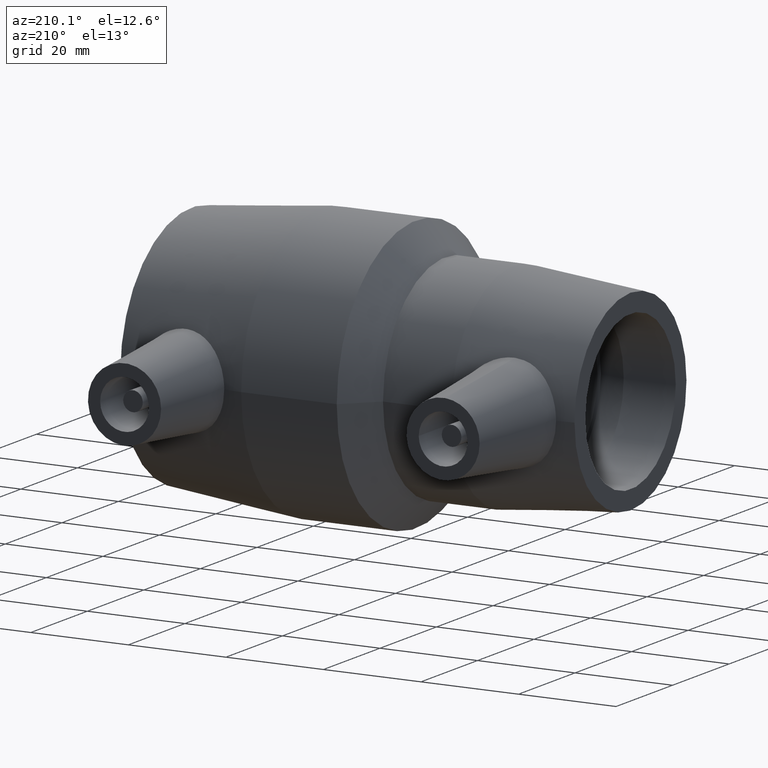
[diagram: clean part render]
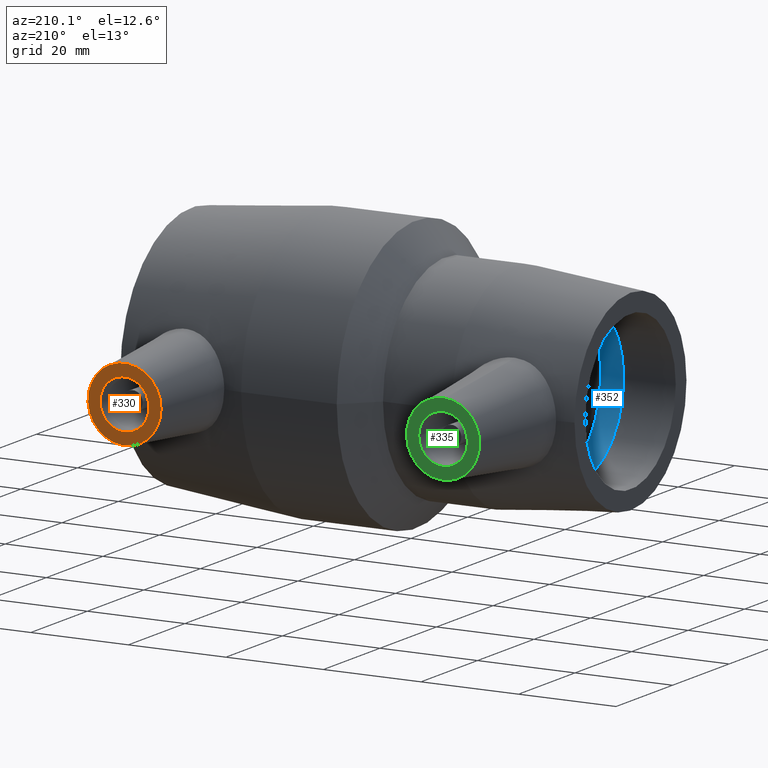
[diagram: same view with three faces highlighted in distinct colors, each labeled with its STEP entity id]
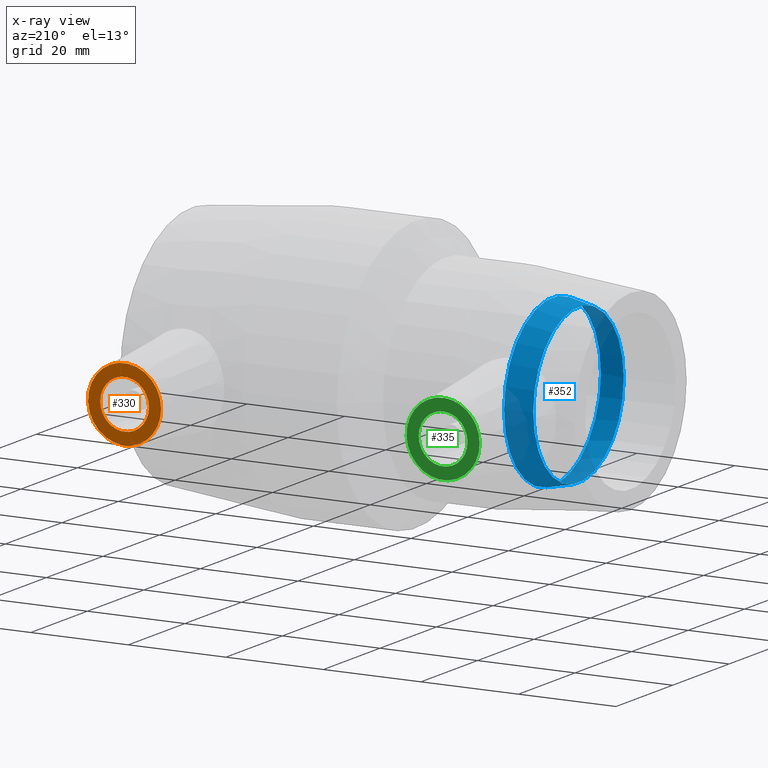
[diagram: x-ray of the same camera — body ghosted, the three highlighted faces saturated]
A machine part, auxiliary view with three faces highlighted in distinct colors.
The next image is the same camera in x-ray (body ghosted, the three faces saturated) — at least one of them is partly hidden behind the body in this view.
Their STEP definitions:

[orange] entity #330 — the highlighted planar face has unit normal (0, 1, 0).
#28=FACE_BOUND('',#107,.T.);
#72=FACE_OUTER_BOUND('',#106,.T.);
#106=EDGE_LOOP('',(#259));
#107=EDGE_LOOP('',(#260));
#164=CIRCLE('',#366,5.);
#165=CIRCLE('',#369,7.5);
#193=VERTEX_POINT('',#553);
#194=VERTEX_POINT('',#557);
#224=EDGE_CURVE('',#193,#193,#164,.T.);
#225=EDGE_CURVE('',#194,#194,#165,.T.);
#259=ORIENTED_EDGE('',*,*,#225,.F.);
#260=ORIENTED_EDGE('',*,*,#224,.T.);
#316=PLANE('',#368);
#330=ADVANCED_FACE('',(#72,#28),#316,.T.);
#366=AXIS2_PLACEMENT_3D('',#554,#436,#437);
#368=AXIS2_PLACEMENT_3D('',#556,#440,#441);
#369=AXIS2_PLACEMENT_3D('',#558,#442,#443);
#436=DIRECTION('center_axis',(0.,-1.,0.));
#437=DIRECTION('ref_axis',(1.,0.,0.));
#440=DIRECTION('center_axis',(0.,1.,0.));
#441=DIRECTION('ref_axis',(0.,0.,1.));
#442=DIRECTION('center_axis',(0.,-1.,0.));
#443=DIRECTION('ref_axis',(1.,0.,0.));
#553=CARTESIAN_POINT('',(26.5,47.,6.12323399573677E-16));
#554=CARTESIAN_POINT('Origin',(31.5,47.,0.));
#556=CARTESIAN_POINT('Origin',(31.5,47.,1.2335811384724E-16));
#557=CARTESIAN_POINT('',(24.,47.,9.18485099360515E-16));
#558=CARTESIAN_POINT('Origin',(31.5,47.,0.));

[blue] entity #352 — the highlighted conical surface has half-angle 12 deg.
#23=CONICAL_SURFACE('',#411,16.5668174977867,12.);
#51=FACE_BOUND('',#152,.T.);
#94=FACE_OUTER_BOUND('',#151,.T.);
#151=EDGE_LOOP('',(#304));
#152=EDGE_LOOP('',(#305));
#185=CIRCLE('',#410,17.1336349955734);
#186=CIRCLE('',#412,16.);
#216=VERTEX_POINT('',#688);
#217=VERTEX_POINT('',#691);
#247=EDGE_CURVE('',#216,#216,#185,.T.);
#248=EDGE_CURVE('',#217,#217,#186,.T.);
#304=ORIENTED_EDGE('',*,*,#248,.F.);
#305=ORIENTED_EDGE('',*,*,#247,.T.);
#352=ADVANCED_FACE('',(#94,#51),#23,.F.);
#410=AXIS2_PLACEMENT_3D('',#689,#524,#525);
#411=AXIS2_PLACEMENT_3D('',#690,#526,#527);
#412=AXIS2_PLACEMENT_3D('',#692,#528,#529);
#524=DIRECTION('center_axis',(1.,1.83697019872103E-16,0.));
#525=DIRECTION('ref_axis',(0.,0.,-1.));
#526=DIRECTION('center_axis',(1.,1.83697019872103E-16,0.));
#527=DIRECTION('ref_axis',(-2.13961620591946E-16,1.,0.));
#528=DIRECTION('center_axis',(1.,1.83697019872103E-16,0.));
#529=DIRECTION('ref_axis',(0.,0.,-1.));
#688=CARTESIAN_POINT('',(-29.,17.1336349955735,0.));
#689=CARTESIAN_POINT('Origin',(-29.,2.93915231795365E-15,0.));
#690=CARTESIAN_POINT('Origin',(-31.6666666666667,2.44929359829471E-15,0.));
#691=CARTESIAN_POINT('',(-34.3333333333333,16.,0.));
#692=CARTESIAN_POINT('Origin',(-34.3333333333333,1.95943487863576E-15,0.));

[green] entity #335 — the highlighted planar face has unit normal (0, 1, 0).
#33=FACE_BOUND('',#117,.T.);
#77=FACE_OUTER_BOUND('',#116,.T.);
#116=EDGE_LOOP('',(#269));
#117=EDGE_LOOP('',(#270));
#168=CIRCLE('',#375,5.);
#169=CIRCLE('',#378,7.5);
#198=VERTEX_POINT('',#601);
#199=VERTEX_POINT('',#605);
#229=EDGE_CURVE('',#198,#198,#168,.T.);
#230=EDGE_CURVE('',#199,#199,#169,.T.);
#269=ORIENTED_EDGE('',*,*,#230,.F.);
#270=ORIENTED_EDGE('',*,*,#229,.T.);
#318=PLANE('',#377);
#335=ADVANCED_FACE('',(#77,#33),#318,.T.);
#375=AXIS2_PLACEMENT_3D('',#602,#454,#455);
#377=AXIS2_PLACEMENT_3D('',#604,#458,#459);
#378=AXIS2_PLACEMENT_3D('',#606,#460,#461);
#454=DIRECTION('center_axis',(0.,-1.,0.));
#455=DIRECTION('ref_axis',(-1.,0.,0.));
#458=DIRECTION('center_axis',(0.,1.,0.));
#459=DIRECTION('ref_axis',(0.,0.,1.));
#460=DIRECTION('center_axis',(0.,-1.,0.));
#461=DIRECTION('ref_axis',(1.,0.,0.));
#601=CARTESIAN_POINT('',(-26.5,43.,-6.12323399573677E-16));
#602=CARTESIAN_POINT('Origin',(-31.5,43.,0.));
#604=CARTESIAN_POINT('Origin',(-31.5,43.,1.2335811384724E-16));
#605=CARTESIAN_POINT('',(-39.,43.,9.18485099360515E-16));
#606=CARTESIAN_POINT('Origin',(-31.5,43.,0.));